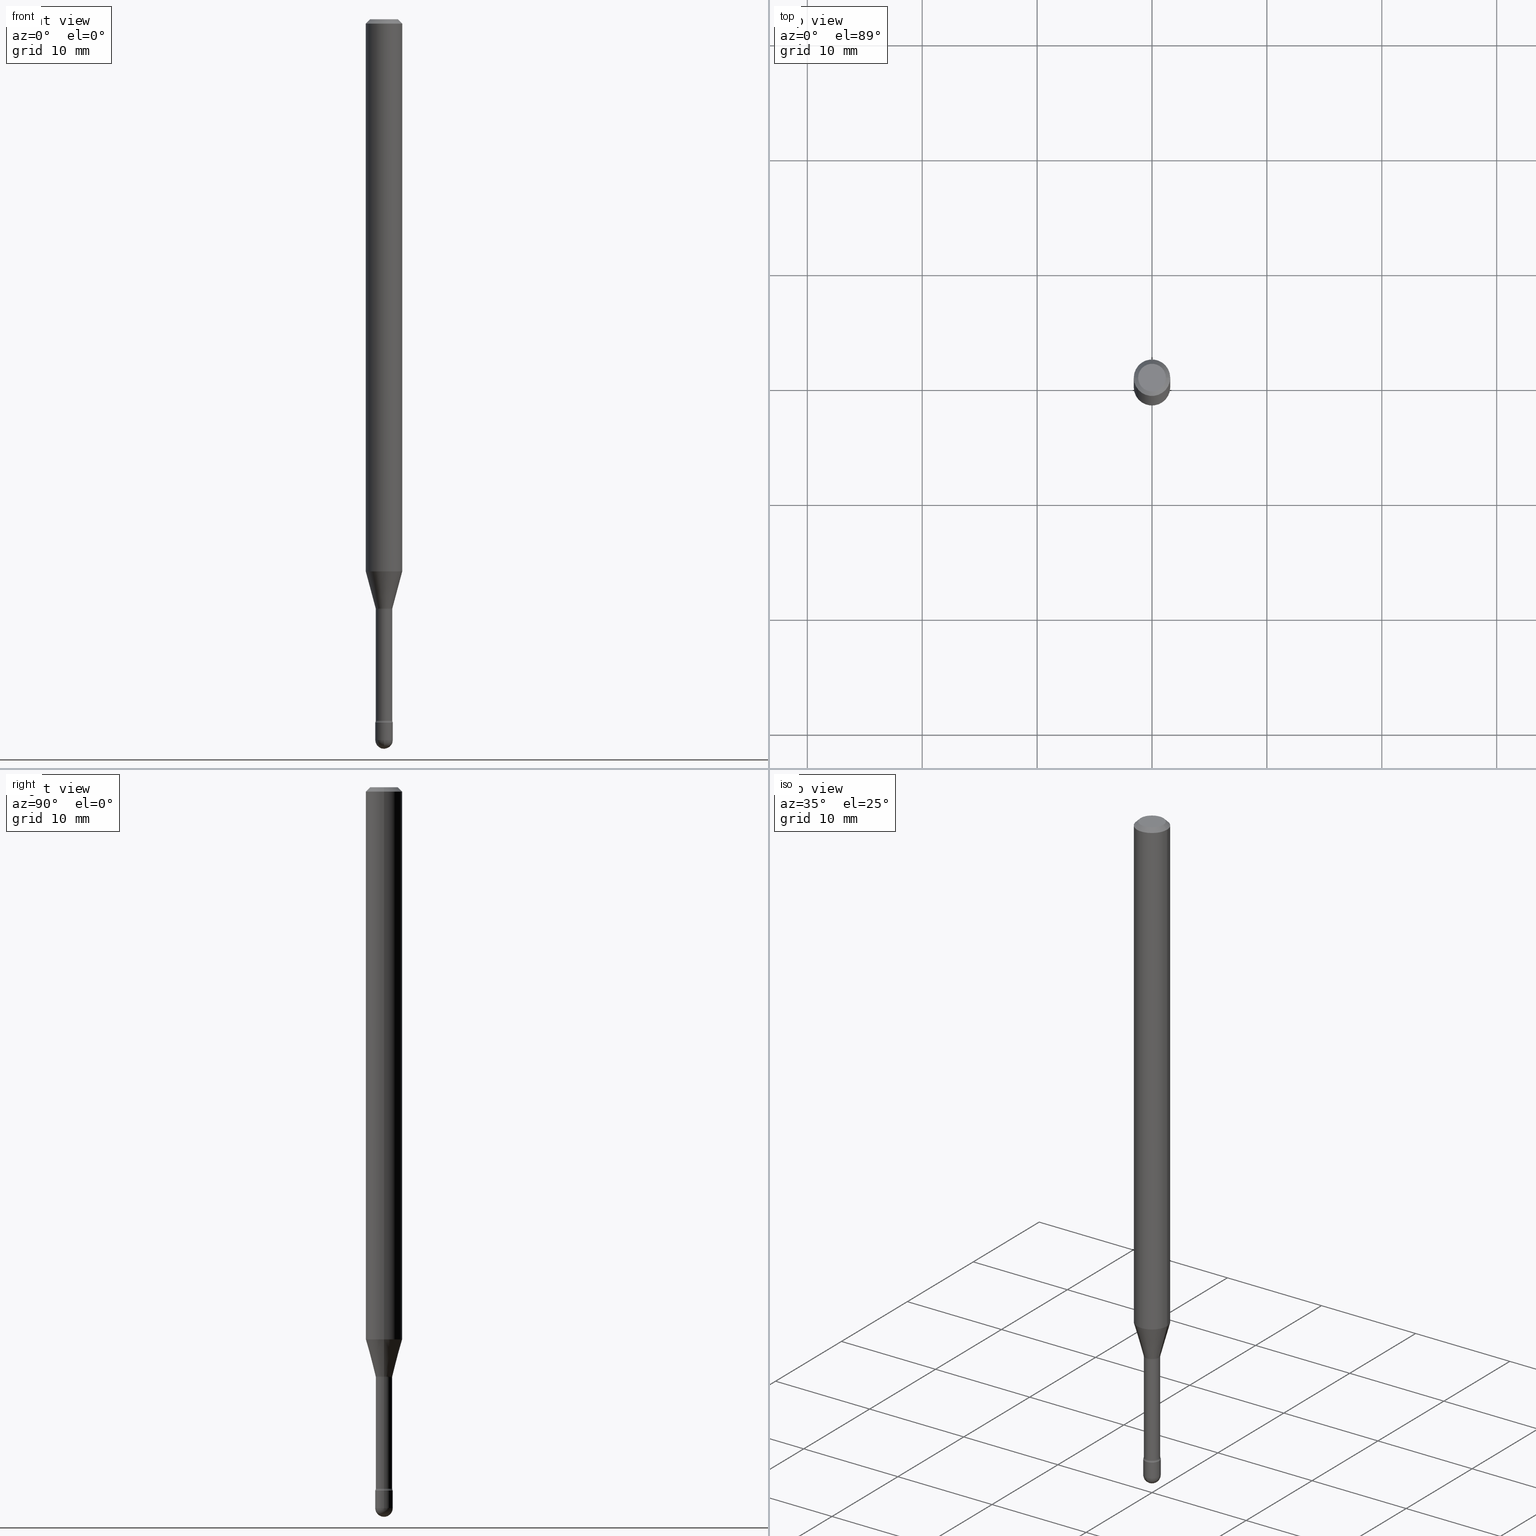
[diagram: canonical four-view strip — front | top / right | iso, engineering-drawing reading convention]
A machine part, canonical four-view strip (front | top / right | iso — engineering-drawing reading convention). The complete STEP part file that produces these views, byte-faithful:
ISO-10303-21;
HEADER;
FILE_DESCRIPTION (( 'STEP AP203' ),
    '1' );
FILE_NAME ('09496.STEP',
    '2024-04-09T23:52:23',
    ( '' ),
    ( '' ),
    'SwSTEP 2.0',
    'SolidWorks 2023',
    '' );
FILE_SCHEMA (( 'CONFIG_CONTROL_DESIGN' ));
ENDSEC;

DATA;
#1 = EDGE_CURVE ( 'NONE', #75, #316, #59, .T. ) ;
#2 = ORIENTED_EDGE ( 'NONE', *, *, #235, .T. ) ;
#3 = DIRECTION ( 'NONE',  ( 1.000000000000000000, -6.982962677686299054E-15, 0.000000000000000000 ) ) ;
#4 = AXIS2_PLACEMENT_3D ( 'NONE', #191, #543, #328 ) ;
#5 = ORIENTED_EDGE ( 'NONE', *, *, #445, .F. ) ;
#6 = EDGE_CURVE ( 'NONE', #163, #319, #530, .T. ) ;
#7 = EDGE_LOOP ( 'NONE', ( #206, #2, #524, #218 ) ) ;
#8 = EDGE_CURVE ( 'NONE', #316, #75, #335, .T. ) ;
#9 = CIRCLE ( 'NONE', #23, 0.03000000000000000583 ) ;
#10 = ORIENTED_EDGE ( 'NONE', *, *, #262, .T. ) ;
#11 = ORIENTED_EDGE ( 'NONE', *, *, #514, .F. ) ;
#12 = CARTESIAN_POINT ( 'NONE',  ( 2.094888803306469144E-16, 0.02999999999999158548, -2.410000000000000142 ) ) ;
#13 = CARTESIAN_POINT ( 'NONE',  ( -0.03000000000000000583, -8.306051646049246381E-15, -2.470000000000000195 ) ) ;
#14 = VERTEX_POINT ( 'NONE', #558 ) ;
#15 = ADVANCED_FACE ( 'NONE', ( #72 ), #248, .T. ) ;
#16 = LINE ( 'NONE', #495, #480 ) ;
#17 = DIRECTION ( 'NONE',  ( -1.000000000000000000, 7.105427357601001070E-15, -4.926315508542082329E-29 ) ) ;
#18 = ORIENTED_EDGE ( 'NONE', *, *, #228, .F. ) ;
#19 = LOCAL_TIME ( 19, 52, 23.00000000000000000, #566 ) ;
#20 = DIRECTION ( 'NONE',  ( -2.445468806185136597E-29, 3.491481338843145583E-15, 1.000000000000000000 ) ) ;
#21 = AXIS2_PLACEMENT_3D ( 'NONE', #84, #546, #298 ) ;
#22 = CONICAL_SURFACE ( 'NONE', #451, 0.02871111260566397427, 0.2617993877991500740 ) ;
#23 = AXIS2_PLACEMENT_3D ( 'NONE', #565, #249, #118 ) ;
#24 = ORIENTED_EDGE ( 'NONE', *, *, #310, .F. ) ;
#25 = ORIENTED_EDGE ( 'NONE', *, *, #364, .F. ) ;
#26 = PLANE ( 'NONE',  #420 ) ;
#27 = ORIENTED_EDGE ( 'NONE', *, *, #414, .T. ) ;
#28 = PERSON_AND_ORGANIZATION ( #207, #528 ) ;
#29 = ORIENTED_EDGE ( 'NONE', *, *, #332, .T. ) ;
#30 = DIRECTION ( 'NONE',  ( 1.000000000000000000, -6.982962677686262766E-15, 0.000000000000000000 ) ) ;
#31 = CIRCLE ( 'NONE', #353, 0.06250000000000000000 ) ;
#32 = ADVANCED_FACE ( 'NONE', ( #108 ), #302, .T. ) ;
#33 = ORIENTED_EDGE ( 'NONE', *, *, #406, .T. ) ;
#34 = EDGE_CURVE ( 'NONE', #323, #194, #347, .T. ) ;
#35 = CARTESIAN_POINT ( 'NONE',  ( 0.02819999999999999590, -1.969195475107510260E-16, 4.780733988912474930E-16 ) ) ;
#36 = PERSON_AND_ORGANIZATION ( #207, #528 ) ;
#37 = DIRECTION ( 'NONE',  ( 1.000000000000000000, -6.982962677686265922E-15, 4.883557194083112340E-29 ) ) ;
#38 = CARTESIAN_POINT ( 'NONE',  ( 5.893579822906179826E-29, -8.414470026611981678E-15, -2.410000000000000142 ) ) ;
#39 = APPROVAL_ROLE ( '' ) ;
#40 = FACE_OUTER_BOUND ( 'NONE', #523, .T. ) ;
#41 = CC_DESIGN_SECURITY_CLASSIFICATION ( #434, ( #483 ) ) ;
#42 = CONICAL_SURFACE ( 'NONE', #408, 0.02871111260566397427, 0.2617993877991500740 ) ;
#43 = ADVANCED_FACE ( 'NONE', ( #544 ), #419, .F. ) ;
#44 = CARTESIAN_POINT ( 'NONE',  ( 0.03000000000000000583, -2.094888803305880457E-16, 1.462853032738781053E-30 ) ) ;
#45 = SHAPE_DEFINITION_REPRESENTATION ( #201, #435 ) ;
#46 = CARTESIAN_POINT ( 'NONE',  ( 6.040307951277287977E-29, -8.623958906942569995E-15, -2.470000000000000195 ) ) ;
#47 = CARTESIAN_POINT ( 'NONE',  ( 0.03000000000000000583, -8.623958906942569995E-15, -2.410000000000000142 ) ) ;
#48 = ORIENTED_EDGE ( 'NONE', *, *, #468, .T. ) ;
#49 = CC_DESIGN_PERSON_AND_ORGANIZATION_ASSIGNMENT ( #36, #205, ( #483 ) ) ;
#50 = CARTESIAN_POINT ( 'NONE',  ( 4.935182261116898354E-29, -7.046132310049541601E-15, -2.018092501787273285 ) ) ;
#51 = AXIS2_PLACEMENT_3D ( 'NONE', #271, #446, #233 ) ;
#52 = CARTESIAN_POINT ( 'NONE',  ( 0.000000000000000000, 0.000000000000000000, 0.000000000000000000 ) ) ;
#53 = EDGE_LOOP ( 'NONE', ( #441, #554, #535, #485 ) ) ;
#54 = DIRECTION ( 'NONE',  ( -2.445468806185136597E-29, 3.491481338843145583E-15, 1.000000000000000000 ) ) ;
#55 = VERTEX_POINT ( 'NONE', #104 ) ;
#56 = DIRECTION ( 'NONE',  ( -2.445468806185136597E-29, 3.491481338843145583E-15, 1.000000000000000000 ) ) ;
#57 = ORIENTED_EDGE ( 'NONE', *, *, #287, .F. ) ;
#58 = APPROVAL_PERSON_ORGANIZATION ( #116, #488, #562 ) ;
#59 = CIRCLE ( 'NONE', #378, 0.02999999999999999889 ) ;
#60 = CC_DESIGN_DATE_AND_TIME_ASSIGNMENT ( #132, #256, ( #434 ) ) ;
#61 = CARTESIAN_POINT ( 'NONE',  ( 6.040307951277287977E-29, -8.623958906942569995E-15, -2.470000000000000195 ) ) ;
#62 = EDGE_CURVE ( 'NONE', #187, #319, #265, .T. ) ;
#63 = DIRECTION ( 'NONE',  ( -2.445468806185136597E-29, 3.491481338843145583E-15, 1.000000000000000000 ) ) ;
#64 = CARTESIAN_POINT ( 'NONE',  ( 0.000000000000000000, 0.000000000000000000, 0.000000000000000000 ) ) ;
#65 = CLOSED_SHELL ( 'NONE', ( #154, #85, #125, #226, #105, #278, #527, #209, #283, #399, #179, #43, #175, #458 ) ) ;
#66 = DIRECTION ( 'NONE',  ( -2.438088387897960049E-29, 3.491481338843145188E-15, 1.000000000000000000 ) ) ;
#67 = AXIS2_PLACEMENT_3D ( 'NONE', #456, #69, #555 ) ;
#68 = EDGE_LOOP ( 'NONE', ( #48, #234, #25, #198, #87 ) ) ;
#69 = DIRECTION ( 'NONE',  ( 2.438088387897960049E-29, -3.491481338843145188E-15, -1.000000000000000000 ) ) ;
#70 = CARTESIAN_POINT ( 'NONE',  ( -0.02999999999999999889, -8.306051646049246381E-15, -2.410000000000000142 ) ) ;
#71 = APPROVAL_DATE_TIME ( #301, #439 ) ;
#72 = FACE_OUTER_BOUND ( 'NONE', #312, .T. ) ;
#73 = DIRECTION ( 'NONE',  ( 1.000000000000000000, -6.982962677686262766E-15, 0.000000000000000000 ) ) ;
#74 = DIRECTION ( 'NONE',  ( -0.2588190451025213501, 5.211531920934551042E-15, 0.9659258262890682012 ) ) ;
#75 = VERTEX_POINT ( 'NONE', #47 ) ;
#76 = CARTESIAN_POINT ( 'NONE',  ( 6.040307951277287977E-29, -8.623958906942569995E-15, -2.470000000000000195 ) ) ;
#77 = ORIENTED_EDGE ( 'NONE', *, *, #217, .T. ) ;
#78 = MANIFOLD_SOLID_BREP ( 'Body-Move/Copy2[1]', #81 ) ;
#79 = DIRECTION ( 'NONE',  ( 1.000000000000000000, -6.982962677686268288E-15, 0.000000000000000000 ) ) ;
#80 = FACE_OUTER_BOUND ( 'NONE', #487, .T. ) ;
#81 = CLOSED_SHELL ( 'NONE', ( #32, #15, #244, #492, #463 ) ) ;
#82 = AXIS2_PLACEMENT_3D ( 'NONE', #349, #501, #30 ) ;
#83 = COORDINATED_UNIVERSAL_TIME_OFFSET ( 5, 0, .BEHIND. ) ;
#84 = CARTESIAN_POINT ( 'NONE',  ( 5.893579822906179826E-29, -8.414470026611981678E-15, -2.410000000000000142 ) ) ;
#85 = ADVANCED_FACE ( 'NONE', ( #313 ), #170, .T. ) ;
#86 = CARTESIAN_POINT ( 'NONE',  ( -0.02871111260566397427, -6.842127585074094010E-15, -2.018092501787273285 ) ) ;
#87 = ORIENTED_EDGE ( 'NONE', *, *, #384, .T. ) ;
#88 = APPROVAL_ROLE ( '' ) ;
#89 = EDGE_CURVE ( 'NONE', #137, #359, #219, .T. ) ;
#90 = CIRCLE ( 'NONE', #111, 0.03000000000000000583 ) ;
#91 = DIRECTION ( 'NONE',  ( 1.000000000000000000, -6.982962677686278543E-15, 0.000000000000000000 ) ) ;
#92 = DIRECTION ( 'NONE',  ( 1.000000000000000000, -6.982962677686270655E-15, 4.883557194083114583E-29 ) ) ;
#93 = ORIENTED_EDGE ( 'NONE', *, *, #235, .F. ) ;
#94 = CARTESIAN_POINT ( 'NONE',  ( -1.169113584055446105E-44, 1.669184350826100908E-30, 4.780733988912460139E-16 ) ) ;
#95 = CARTESIAN_POINT ( 'NONE',  ( 4.935182261116898354E-29, -7.046132310049541601E-15, -2.018092501787273285 ) ) ;
#96 = CIRCLE ( 'NONE', #167, 0.06250000000000000000 ) ;
#97 = VERTEX_POINT ( 'NONE', #520 ) ;
#98 = PLANE ( 'NONE',  #502 ) ;
#99 = ORIENTED_EDGE ( 'NONE', *, *, #342, .T. ) ;
#100 = CARTESIAN_POINT ( 'NONE',  ( -0.06250000000000000000, -6.161760863379818545E-15, -1.891990657300387735 ) ) ;
#101 = EDGE_LOOP ( 'NONE', ( #409, #192, #375, #140 ) ) ;
#102 = CARTESIAN_POINT ( 'NONE',  ( -0.06250000000000000000, 3.840629472727441958E-16, -0.01500000000000008271 ) ) ;
#103 = LINE ( 'NONE', #447, #472 ) ;
#104 = CARTESIAN_POINT ( 'NONE',  ( 0.02819999999999999590, -8.586514147837976028E-15, -2.402875394747777893 ) ) ;
#105 = ADVANCED_FACE ( 'NONE', ( #131 ), #188, .T. ) ;
#106 = DIRECTION ( 'NONE',  ( 1.000000000000000000, -6.982962677686266711E-15, 4.947382444955205209E-29 ) ) ;
#107 = ORIENTED_EDGE ( 'NONE', *, *, #62, .T. ) ;
#108 = FACE_OUTER_BOUND ( 'NONE', #68, .T. ) ;
#109 = AXIS2_PLACEMENT_3D ( 'NONE', #325, #448, #106 ) ;
#110 = DIRECTION ( 'NONE',  ( 7.105427357601001859E-15, 1.000000000000000000, -3.491481338843145583E-15 ) ) ;
#111 = AXIS2_PLACEMENT_3D ( 'NONE', #76, #476, #380 ) ;
#112 = ORIENTED_EDGE ( 'NONE', *, *, #384, .F. ) ;
#113 = CARTESIAN_POINT ( 'NONE',  ( 4.944676269635571097E-29, -7.059687238041231398E-15, -2.021974787463811207 ) ) ;
#114 = CARTESIAN_POINT ( 'NONE',  ( 3.668203209277725232E-31, -5.237222008264747365E-17, -0.01500000000000008271 ) ) ;
#115 = ORIENTED_EDGE ( 'NONE', *, *, #89, .T. ) ;
#116 = PERSON_AND_ORGANIZATION ( #207, #528 ) ;
#117 = VERTEX_POINT ( 'NONE', #13 ) ;
#118 = DIRECTION ( 'NONE',  ( 1.000000000000000000, -6.982962677686299054E-15, 0.000000000000000000 ) ) ;
#119 = EDGE_CURVE ( 'NONE', #187, #285, #96, .T. ) ;
#120 = DIRECTION ( 'NONE',  ( 6.982962677686265922E-15, 1.000000000000000000, 0.000000000000000000 ) ) ;
#121 = CARTESIAN_POINT ( 'NONE',  ( -1.169113584055446105E-44, 1.669184350826100908E-30, 4.780733988912460139E-16 ) ) ;
#122 = CIRCLE ( 'NONE', #348, 0.02819999999999999590 ) ;
#123 = DIRECTION ( 'NONE',  ( 1.000000000000000000, -6.982962677686280121E-15, 0.000000000000000000 ) ) ;
#124 = CARTESIAN_POINT ( 'NONE',  ( -0.06250000000000000000, -2.885021936806201701E-15, -0.01500000000000008271 ) ) ;
#125 = ADVANCED_FACE ( 'NONE', ( #80 ), #133, .F. ) ;
#126 = PERSON_AND_ORGANIZATION_ROLE ( 'creator' ) ;
#127 = DIRECTION ( 'NONE',  ( -2.445468806185136597E-29, 3.491481338843145583E-15, 1.000000000000000000 ) ) ;
#128 = EDGE_CURVE ( 'NONE', #285, #163, #16, .T. ) ;
#129 = CALENDAR_DATE ( 2024, 9, 4 ) ;
#130 = SPHERICAL_SURFACE ( 'NONE', #306, 0.02999999999999997807 ) ;
#131 = FACE_OUTER_BOUND ( 'NONE', #550, .T. ) ;
#132 = DATE_AND_TIME ( #129, #19 ) ;
#133 = TOROIDAL_SURFACE ( 'NONE', #304, 0.04320000000000000923, 0.01500000000000001159 ) ;
#134 = DIRECTION ( 'NONE',  ( -1.000000000000000000, 6.982962677686265922E-15, -4.883557194083112340E-29 ) ) ;
#135 =( GEOMETRIC_REPRESENTATION_CONTEXT ( 3 ) GLOBAL_UNCERTAINTY_ASSIGNED_CONTEXT ( ( #473 ) ) GLOBAL_UNIT_ASSIGNED_CONTEXT ( ( #138, #526, #484 ) ) REPRESENTATION_CONTEXT ( 'NONE', 'WORKASPACE' ) );
#136 = CC_DESIGN_DATE_AND_TIME_ASSIGNMENT ( #549, #343, ( #251 ) ) ;
#137 = VERTEX_POINT ( 'NONE', #280 ) ;
#138 =( CONVERSION_BASED_UNIT ( 'INCH', #224 ) LENGTH_UNIT ( ) NAMED_UNIT ( #291 ) );
#139 = EDGE_LOOP ( 'NONE', ( #538, #152, #29, #57 ) ) ;
#140 = ORIENTED_EDGE ( 'NONE', *, *, #507, .F. ) ;
#141 = ORIENTED_EDGE ( 'NONE', *, *, #322, .F. ) ;
#142 = DIRECTION ( 'NONE',  ( 1.000000000000000000, -6.982962677686267499E-15, 4.884662768193073002E-29 ) ) ;
#143 = ORIENTED_EDGE ( 'NONE', *, *, #119, .F. ) ;
#144 = AXIS2_PLACEMENT_3D ( 'NONE', #50, #385, #123 ) ;
#145 = CIRCLE ( 'NONE', #4, 0.02999999999999999889 ) ;
#146 = DIRECTION ( 'NONE',  ( -2.445468806185136597E-29, 3.491481338843145583E-15, 1.000000000000000000 ) ) ;
#147 = DIRECTION ( 'NONE',  ( -2.445468806185136877E-29, 3.491481338843145188E-15, 1.000000000000000000 ) ) ;
#148 = ORIENTED_EDGE ( 'NONE', *, *, #183, .F. ) ;
#149 = CARTESIAN_POINT ( 'NONE',  ( 4.944676269635571097E-29, -7.059687238041231398E-15, -2.021974787463811207 ) ) ;
#150 = DIRECTION ( 'NONE',  ( 1.000000000000000000, -6.982962677686270655E-15, 4.883557194083114583E-29 ) ) ;
#151 = APPROVAL_DATE_TIME ( #518, #488 ) ;
#152 = ORIENTED_EDGE ( 'NONE', *, *, #541, .T. ) ;
#153 = CARTESIAN_POINT ( 'NONE',  ( 0.02819999999999999243, -7.256606785551984890E-15, -2.021974787463811207 ) ) ;
#154 = ADVANCED_FACE ( 'NONE', ( #330 ), #317, .F. ) ;
#155 = CIRCLE ( 'NONE', #259, 0.04749999999999999362 ) ;
#156 = FACE_OUTER_BOUND ( 'NONE', #288, .T. ) ;
#157 = CIRCLE ( 'NONE', #436, 0.02819999999999999590 ) ;
#158 = DIRECTION ( 'NONE',  ( 0.000000000000000000, 0.000000000000000000, 1.000000000000000000 ) ) ;
#159 = ORIENTED_EDGE ( 'NONE', *, *, #507, .T. ) ;
#160 = CC_DESIGN_PERSON_AND_ORGANIZATION_ASSIGNMENT ( #172, #351, ( #434 ) ) ;
#161 = CARTESIAN_POINT ( 'NONE',  ( 4.944676269635571097E-29, -7.059687238041231398E-15, -2.021974787463811207 ) ) ;
#162 = PERSON_AND_ORGANIZATION_ROLE ( 'creator' ) ;
#163 = VERTEX_POINT ( 'NONE', #189 ) ;
#164 = DIRECTION ( 'NONE',  ( -2.445468806185136597E-29, 3.491481338843145583E-15, 1.000000000000000000 ) ) ;
#165 = DIRECTION ( 'NONE',  ( -2.445468806185136877E-29, 3.491481338843145188E-15, 1.000000000000000000 ) ) ;
#166 = EDGE_CURVE ( 'NONE', #359, #455, #397, .T. ) ;
#167 = AXIS2_PLACEMENT_3D ( 'NONE', #277, #444, #510 ) ;
#168 = CONICAL_SURFACE ( 'NONE', #178, 0.06250000000000000000, 0.7853981633974483900 ) ;
#169 = LOCAL_TIME ( 19, 52, 23.00000000000000000, #214 ) ;
#170 = CYLINDRICAL_SURFACE ( 'NONE', #407, 0.02819999999999999590 ) ;
#171 = DIRECTION ( 'NONE',  ( -2.445468806185136597E-29, 3.491481338843145583E-15, 1.000000000000000000 ) ) ;
#172 = PERSON_AND_ORGANIZATION ( #207, #528 ) ;
#173 =( LENGTH_UNIT ( ) NAMED_UNIT ( * ) SI_UNIT ( $, .METRE. ) );
#174 = LINE ( 'NONE', #432, #327 ) ;
#175 = ADVANCED_FACE ( 'NONE', ( #498 ), #400, .T. ) ;
#176 = ORIENTED_EDGE ( 'NONE', *, *, #445, .T. ) ;
#177 = DIRECTION ( 'NONE',  ( 0.2588190451025213501, 1.565188264969621968E-15, 0.9659258262890682012 ) ) ;
#178 = AXIS2_PLACEMENT_3D ( 'NONE', #421, #246, #560 ) ;
#179 = ADVANCED_FACE ( 'NONE', ( #284 ), #98, .F. ) ;
#180 = ORIENTED_EDGE ( 'NONE', *, *, #8, .T. ) ;
#181 = CARTESIAN_POINT ( 'NONE',  ( 6.040307951277287977E-29, -8.623958906942569995E-15, -2.470000000000000195 ) ) ;
#182 = VERTEX_POINT ( 'NONE', #365 ) ;
#183 = EDGE_CURVE ( 'NONE', #401, #184, #155, .T. ) ;
#184 = VERTEX_POINT ( 'NONE', #489 ) ;
#185 = AXIS2_PLACEMENT_3D ( 'NONE', #253, #37, #241 ) ;
#186 = AXIS2_PLACEMENT_3D ( 'NONE', #52, #537, #392 ) ;
#187 = VERTEX_POINT ( 'NONE', #100 ) ;
#188 = CYLINDRICAL_SURFACE ( 'NONE', #540, 0.06250000000000000000 ) ;
#189 = CARTESIAN_POINT ( 'NONE',  ( 0.06250000000000000000, -4.888073874380391431E-16, -0.01500000000000008271 ) ) ;
#190 = CARTESIAN_POINT ( 'NONE',  ( 5.876156823005485882E-29, -8.389594600327222537E-15, -2.402875394747777449 ) ) ;
#191 = CARTESIAN_POINT ( 'NONE',  ( 5.893579822906179826E-29, -8.414470026611981678E-15, -2.410000000000000142 ) ) ;
#192 = ORIENTED_EDGE ( 'NONE', *, *, #228, .T. ) ;
#193 = AXIS2_PLACEMENT_3D ( 'NONE', #337, #20, #73 ) ;
#194 = VERTEX_POINT ( 'NONE', #275 ) ;
#195 = VERTEX_POINT ( 'NONE', #443 ) ;
#196 = ORIENTED_EDGE ( 'NONE', *, *, #357, .T. ) ;
#197 = DIRECTION ( 'NONE',  ( -2.438088387897960049E-29, 3.491481338843145188E-15, 1.000000000000000000 ) ) ;
#198 = ORIENTED_EDGE ( 'NONE', *, *, #477, .F. ) ;
#199 = VECTOR ( 'NONE', #457, 39.37007874015748143 ) ;
#200 = CARTESIAN_POINT ( 'NONE',  ( -0.04320000000000000923, -8.082640138478858353E-15, -2.402875394747777449 ) ) ;
#201 = PRODUCT_DEFINITION_SHAPE ( 'NONE', 'NONE',  #251 ) ;
#202 = CIRCLE ( 'NONE', #362, 0.02819999999999999243 ) ;
#203 = ORIENTED_EDGE ( 'NONE', *, *, #8, .F. ) ;
#204 = DIRECTION ( 'NONE',  ( 1.000000000000000000, -6.982962677686266711E-15, 4.852736867747366207E-29 ) ) ;
#205 = PERSON_AND_ORGANIZATION_ROLE ( 'design_supplier' ) ;
#206 = ORIENTED_EDGE ( 'NONE', *, *, #89, .F. ) ;
#207 = PERSON ( 'UNSPECIFIED', 'UNSPECIFIED', 'UNSPECIFIED', ('UNSPECIFIED'), ('UNSPECIFIED'), ('UNSPECIFIED') ) ;
#208 = DIRECTION ( 'NONE',  ( 1.000000000000000000, -6.982962677686265922E-15, 4.876176775795935793E-29 ) ) ;
#209 = ADVANCED_FACE ( 'NONE', ( #307 ), #345, .T. ) ;
#210 = CALENDAR_DATE ( 2024, 9, 4 ) ;
#211 = CARTESIAN_POINT ( 'NONE',  ( -0.03000000000000000583, 2.131628207280300972E-16, -1.475680527076471882E-30 ) ) ;
#212 = LOCAL_TIME ( 19, 52, 23.00000000000000000, #471 ) ;
#213 = CIRCLE ( 'NONE', #389, 0.03000000000000000583 ) ;
#214 = COORDINATED_UNIVERSAL_TIME_OFFSET ( 5, 0, .BEHIND. ) ;
#215 = EDGE_CURVE ( 'NONE', #117, #326, #559, .T. ) ;
#216 = LINE ( 'NONE', #44, #231 ) ;
#217 = EDGE_CURVE ( 'NONE', #319, #163, #31, .T. ) ;
#218 = ORIENTED_EDGE ( 'NONE', *, *, #166, .F. ) ;
#219 = CIRCLE ( 'NONE', #144, 0.02871111260566397427 ) ;
#220 = DIRECTION ( 'NONE',  ( 6.982962677686265922E-15, 1.000000000000000000, 0.000000000000000000 ) ) ;
#221 = CIRCLE ( 'NONE', #464, 0.03000000000000000583 ) ;
#222 = EDGE_CURVE ( 'NONE', #326, #508, #490, .T. ) ;
#223 = ORIENTED_EDGE ( 'NONE', *, *, #545, .T. ) ;
#224 = LENGTH_MEASURE_WITH_UNIT ( LENGTH_MEASURE( 0.02539999999999999897 ), #173 );
#225 = ORIENTED_EDGE ( 'NONE', *, *, #34, .F. ) ;
#226 = ADVANCED_FACE ( 'NONE', ( #466 ), #491, .T. ) ;
#227 = ORIENTED_EDGE ( 'NONE', *, *, #310, .T. ) ;
#228 = EDGE_CURVE ( 'NONE', #137, #187, #305, .T. ) ;
#229 = ORIENTED_EDGE ( 'NONE', *, *, #215, .F. ) ;
#230 = ORIENTED_EDGE ( 'NONE', *, *, #391, .T. ) ;
#231 = VECTOR ( 'NONE', #431, 39.37007874015748143 ) ;
#232 = ORIENTED_EDGE ( 'NONE', *, *, #34, .T. ) ;
#233 = DIRECTION ( 'NONE',  ( 1.000000000000000000, -6.982962677686255667E-15, 0.000000000000000000 ) ) ;
#234 = ORIENTED_EDGE ( 'NONE', *, *, #215, .T. ) ;
#235 = EDGE_CURVE ( 'NONE', #137, #195, #355, .T. ) ;
#236 = DIRECTION ( 'NONE',  ( 1.000000000000000000, -6.982962677686266711E-15, 4.876176775795935793E-29 ) ) ;
#237 = AXIS2_PLACEMENT_3D ( 'NONE', #382, #372, #462 ) ;
#238 = VECTOR ( 'NONE', #534, 39.37007874015748143 ) ;
#239 = DIRECTION ( 'NONE',  ( -2.445468806185136597E-29, 3.491481338843145583E-15, 1.000000000000000000 ) ) ;
#240 = DIRECTION ( 'NONE',  ( 1.000000000000000000, -6.982962677686265922E-15, 4.876176775795935793E-29 ) ) ;
#241 = DIRECTION ( 'NONE',  ( 6.982962677686265922E-15, 1.000000000000000000, 0.000000000000000000 ) ) ;
#242 = LINE ( 'NONE', #35, #515 ) ;
#243 = APPROVAL ( #465, 'UNSPECIFIED' ) ;
#244 = ADVANCED_FACE ( 'NONE', ( #40 ), #26, .T. ) ;
#245 = DIRECTION ( 'NONE',  ( 1.000000000000000000, -6.982962677686269866E-15, 4.883557194083114583E-29 ) ) ;
#246 = DIRECTION ( 'NONE',  ( 2.445468806185136597E-29, -3.491481338843145583E-15, -1.000000000000000000 ) ) ;
#247 = CALENDAR_DATE ( 2024, 9, 4 ) ;
#248 = SPHERICAL_SURFACE ( 'NONE', #426, 0.02999999999999997807 ) ;
#249 = DIRECTION ( 'NONE',  ( -2.445468806185136597E-29, 3.491481338843145583E-15, 1.000000000000000000 ) ) ;
#250 = AXIS2_PLACEMENT_3D ( 'NONE', #453, #556, #299 ) ;
#251 = PRODUCT_DEFINITION ( 'UNKNOWN', '', #483, #438 ) ;
#252 = CALENDAR_DATE ( 2024, 9, 4 ) ;
#253 = CARTESIAN_POINT ( 'NONE',  ( 6.040307951277287977E-29, -8.623958906942569995E-15, -2.470000000000000195 ) ) ;
#254 = CALENDAR_DATE ( 2024, 9, 4 ) ;
#255 = CARTESIAN_POINT ( 'NONE',  ( -0.04320000000000000229, -6.752732776192868792E-15, -2.021974787463811207 ) ) ;
#256 = DATE_TIME_ROLE ( 'classification_date' ) ;
#257 = DIRECTION ( 'NONE',  ( -2.445468806185136597E-29, 3.491481338843145583E-15, 1.000000000000000000 ) ) ;
#258 = CYLINDRICAL_SURFACE ( 'NONE', #186, 0.03000000000000000583 ) ;
#259 = AXIS2_PLACEMENT_3D ( 'NONE', #539, #411, #142 ) ;
#260 = CIRCLE ( 'NONE', #82, 0.01500000000000001159 ) ;
#261 = MANIFOLD_SOLID_BREP ( 'Body-Move/Copy2[2]', #65 ) ;
#262 = EDGE_CURVE ( 'NONE', #14, #182, #9, .T. ) ;
#263 = EDGE_LOOP ( 'NONE', ( #24, #339, #415, #377 ) ) ;
#264 = DIRECTION ( 'NONE',  ( 1.000000000000000000, -6.982962677686280121E-15, 0.000000000000000000 ) ) ;
#265 = LINE ( 'NONE', #433, #553 ) ;
#266 = APPROVAL_PERSON_ORGANIZATION ( #424, #439, #88 ) ;
#267 = ORIENTED_EDGE ( 'NONE', *, *, #222, .T. ) ;
#268 = CARTESIAN_POINT ( 'NONE',  ( 2.023552857353652888E-45, -2.889097183224559242E-31, -8.274703207154537794E-17 ) ) ;
#269 = AXIS2_PLACEMENT_3D ( 'NONE', #292, #164, #79 ) ;
#270 = EDGE_LOOP ( 'NONE', ( #18, #115, #159, #143 ) ) ;
#271 = CARTESIAN_POINT ( 'NONE',  ( 0.04320000000000000229, -7.361351225717278259E-15, -2.021974787463811207 ) ) ;
#272 = EDGE_LOOP ( 'NONE', ( #93, #141, #418, #176 ) ) ;
#273 = AXIS2_PLACEMENT_3D ( 'NONE', #121, #257, #204 ) ;
#274 = AXIS2_PLACEMENT_3D ( 'NONE', #255, #509, #390 ) ;
#275 = CARTESIAN_POINT ( 'NONE',  ( 2.094888803306483442E-16, 0.02999999999999137038, -2.470000000000000195 ) ) ;
#276 = CARTESIAN_POINT ( 'NONE',  ( 0.06250000000000000000, -4.811533449433681963E-16, -0.01500000000000008271 ) ) ;
#277 = CARTESIAN_POINT ( 'NONE',  ( 4.626804134021810913E-29, -6.605850073229881161E-15, -1.891990657300387735 ) ) ;
#278 = ADVANCED_FACE ( 'NONE', ( #416 ), #42, .T. ) ;
#279 = CARTESIAN_POINT ( 'NONE',  ( 5.876156823005487003E-29, -8.389594600327222537E-15, -2.402875394747777893 ) ) ;
#280 = CARTESIAN_POINT ( 'NONE',  ( -0.02871111260566397427, -6.501944224226956672E-15, -2.018092501787273285 ) ) ;
#281 = DIRECTION ( 'NONE',  ( -2.445468806185136597E-29, 3.491481338843145583E-15, 1.000000000000000000 ) ) ;
#282 = DIRECTION ( 'NONE',  ( -0.7071067811865475727, 2.468850131082257455E-15, -0.7071067811865474617 ) ) ;
#283 = ADVANCED_FACE ( 'NONE', ( #156 ), #168, .T. ) ;
#284 = FACE_OUTER_BOUND ( 'NONE', #403, .T. ) ;
#285 = VERTEX_POINT ( 'NONE', #469 ) ;
#286 = LINE ( 'NONE', #276, #238 ) ;
#287 = EDGE_CURVE ( 'NONE', #195, #455, #202, .T. ) ;
#288 = EDGE_LOOP ( 'NONE', ( #324, #329, #230, #77 ) ) ;
#289 = VECTOR ( 'NONE', #74, 39.37007874015747433 ) ;
#290 = FACE_OUTER_BOUND ( 'NONE', #272, .T. ) ;
#291 = DIMENSIONAL_EXPONENTS ( 1.000000000000000000, 0.000000000000000000, 0.000000000000000000, 0.000000000000000000, 0.000000000000000000, 0.000000000000000000, 0.000000000000000000 ) ;
#292 = CARTESIAN_POINT ( 'NONE',  ( 5.893579822906179826E-29, -8.414470026611981678E-15, -2.410000000000000142 ) ) ;
#293 = CARTESIAN_POINT ( 'NONE',  ( 0.000000000000000000, 0.000000000000000000, 0.000000000000000000 ) ) ;
#294 = ORIENTED_EDGE ( 'NONE', *, *, #308, .F. ) ;
#295 = DIRECTION ( 'NONE',  ( -2.445468806185136597E-29, 3.491481338843145583E-15, 1.000000000000000000 ) ) ;
#296 = CARTESIAN_POINT ( 'NONE',  ( 3.668203209277725232E-31, -5.237222008264747365E-17, -0.01500000000000008271 ) ) ;
#297 = PRODUCT ( '09496', '09496', '', ( #557 ) ) ;
#298 = DIRECTION ( 'NONE',  ( 1.000000000000000000, -6.982962677686268288E-15, 0.000000000000000000 ) ) ;
#299 = DIRECTION ( 'NONE',  ( 1.000000000000000000, -6.982962677686280121E-15, 0.000000000000000000 ) ) ;
#300 = CC_DESIGN_PERSON_AND_ORGANIZATION_ASSIGNMENT ( #333, #126, ( #483 ) ) ;
#301 = DATE_AND_TIME ( #210, #169 ) ;
#302 = CYLINDRICAL_SURFACE ( 'NONE', #309, 0.03000000000000000583 ) ;
#303 = PERSON_AND_ORGANIZATION ( #207, #528 ) ;
#304 = AXIS2_PLACEMENT_3D ( 'NONE', #190, #63, #150 ) ;
#305 = LINE ( 'NONE', #86, #289 ) ;
#306 = AXIS2_PLACEMENT_3D ( 'NONE', #181, #134, #220 ) ;
#307 = FACE_OUTER_BOUND ( 'NONE', #53, .T. ) ;
#308 = EDGE_CURVE ( 'NONE', #55, #75, #260, .T. ) ;
#309 = AXIS2_PLACEMENT_3D ( 'NONE', #64, #459, #236 ) ;
#310 = EDGE_CURVE ( 'NONE', #97, #316, #350, .T. ) ;
#311 = CARTESIAN_POINT ( 'NONE',  ( 6.040307951277287977E-29, -8.623958906942569995E-15, -2.470000000000000195 ) ) ;
#312 = EDGE_LOOP ( 'NONE', ( #225, #196, #11, #486 ) ) ;
#313 = FACE_OUTER_BOUND ( 'NONE', #482, .T. ) ;
#314 = DIRECTION ( 'NONE',  ( 1.000000000000000000, -6.982962677686299054E-15, 0.000000000000000000 ) ) ;
#315 = APPROVAL_PERSON_ORGANIZATION ( #303, #243, #39 ) ;
#316 = VERTEX_POINT ( 'NONE', #517 ) ;
#317 = TOROIDAL_SURFACE ( 'NONE', #388, 0.04320000000000000229, 0.01500000000000002720 ) ;
#318 = CIRCLE ( 'NONE', #522, 0.02819999999999999243 ) ;
#319 = VERTEX_POINT ( 'NONE', #124 ) ;
#320 = ORIENTED_EDGE ( 'NONE', *, *, #1, .F. ) ;
#321 = DIRECTION ( 'NONE',  ( -7.105427357601001070E-15, -1.000000000000000000, 0.000000000000000000 ) ) ;
#322 = EDGE_CURVE ( 'NONE', #359, #137, #393, .T. ) ;
#323 = VERTEX_POINT ( 'NONE', #460 ) ;
#324 = ORIENTED_EDGE ( 'NONE', *, *, #342, .F. ) ;
#325 = CARTESIAN_POINT ( 'NONE',  ( -1.169113584055446105E-44, 1.669184350826100908E-30, 4.780733988912460139E-16 ) ) ;
#326 = VERTEX_POINT ( 'NONE', #70 ) ;
#327 = VECTOR ( 'NONE', #177, 39.37007874015747433 ) ;
#328 = DIRECTION ( 'NONE',  ( 1.000000000000000000, -6.982962677686268288E-15, 0.000000000000000000 ) ) ;
#329 = ORIENTED_EDGE ( 'NONE', *, *, #545, .F. ) ;
#330 = FACE_OUTER_BOUND ( 'NONE', #7, .T. ) ;
#331 = ORIENTED_EDGE ( 'NONE', *, *, #514, .T. ) ;
#332 = EDGE_CURVE ( 'NONE', #55, #455, #242, .T. ) ;
#333 = PERSON_AND_ORGANIZATION ( #207, #528 ) ;
#334 = EDGE_LOOP ( 'NONE', ( #223, #422 ) ) ;
#335 = CIRCLE ( 'NONE', #21, 0.02999999999999999889 ) ;
#336 = AXIS2_PLACEMENT_3D ( 'NONE', #61, #17, #321 ) ;
#337 = CARTESIAN_POINT ( 'NONE',  ( 4.626804134021810913E-29, -6.605850073229881161E-15, -1.891990657300387735 ) ) ;
#338 = DIRECTION ( 'NONE',  ( 1.000000000000000000, -6.982962677686279332E-15, 0.000000000000000000 ) ) ;
#339 = ORIENTED_EDGE ( 'NONE', *, *, #406, .F. ) ;
#340 = PERSON_AND_ORGANIZATION_ROLE ( 'design_owner' ) ;
#341 = CARTESIAN_POINT ( 'NONE',  ( 5.893579822906179826E-29, -8.414470026611981678E-15, -2.410000000000000142 ) ) ;
#342 = EDGE_CURVE ( 'NONE', #401, #163, #286, .T. ) ;
#343 = DATE_TIME_ROLE ( 'creation_date' ) ;
#344 = CARTESIAN_POINT ( 'NONE',  ( 6.040307951277287977E-29, -8.623958906942569995E-15, -2.470000000000000195 ) ) ;
#345 = CYLINDRICAL_SURFACE ( 'NONE', #273, 0.06250000000000000000 ) ;
#346 = APPLICATION_CONTEXT ( 'configuration controlled 3d designs of mechanical parts and assemblies' ) ;
#347 = CIRCLE ( 'NONE', #185, 0.02999999999999997807 ) ;
#348 = AXIS2_PLACEMENT_3D ( 'NONE', #474, #395, #91 ) ;
#349 = CARTESIAN_POINT ( 'NONE',  ( 0.04320000000000000923, -8.691258588003269398E-15, -2.402875394747777449 ) ) ;
#350 = CIRCLE ( 'NONE', #481, 0.01500000000000001159 ) ;
#351 = PERSON_AND_ORGANIZATION_ROLE ( 'classification_officer' ) ;
#352 = DIRECTION ( 'NONE',  ( 1.000000000000000000, -6.982962677686266711E-15, 4.947382444955205209E-29 ) ) ;
#353 = AXIS2_PLACEMENT_3D ( 'NONE', #114, #383, #513 ) ;
#354 = ORIENTED_EDGE ( 'NONE', *, *, #364, .T. ) ;
#355 = CIRCLE ( 'NONE', #274, 0.01500000000000002720 ) ;
#356 = DIRECTION ( 'NONE',  ( -2.445468806185136597E-29, 3.491481338843145583E-15, 1.000000000000000000 ) ) ;
#357 = EDGE_CURVE ( 'NONE', #323, #14, #370, .T. ) ;
#358 = CARTESIAN_POINT ( 'NONE',  ( 0.02999999999999999889, -8.623958906942569995E-15, -2.410000000000000142 ) ) ;
#359 = VERTEX_POINT ( 'NONE', #536 ) ;
#360 = ORIENTED_EDGE ( 'NONE', *, *, #391, .F. ) ;
#361 = EDGE_LOOP ( 'NONE', ( #229, #331, #10, #452, #467 ) ) ;
#362 = AXIS2_PLACEMENT_3D ( 'NONE', #161, #171, #338 ) ;
#363 = CARTESIAN_POINT ( 'NONE',  ( -1.169113584055446105E-44, 1.669184350826100908E-30, 4.780733988912460139E-16 ) ) ;
#364 = EDGE_CURVE ( 'NONE', #508, #326, #145, .T. ) ;
#365 = CARTESIAN_POINT ( 'NONE',  ( 0.03000000000000000583, -8.728703347107864943E-15, -2.470000000000000195 ) ) ;
#366 = APPLICATION_CONTEXT ( 'configuration controlled 3d designs of mechanical parts and assemblies' ) ;
#367 = PLANE ( 'NONE',  #67 ) ;
#368 = DIRECTION ( 'NONE',  ( 1.000000000000000000, -6.982962677686269866E-15, 4.883557194083114583E-29 ) ) ;
#369 = AXIS2_PLACEMENT_3D ( 'NONE', #293, #158, #417 ) ;
#370 = CIRCLE ( 'NONE', #336, 0.02999999999999997807 ) ;
#371 = EDGE_CURVE ( 'NONE', #97, #195, #103, .T. ) ;
#372 = DIRECTION ( 'NONE',  ( -2.445468806185136597E-29, 3.491481338843145583E-15, 1.000000000000000000 ) ) ;
#373 = CARTESIAN_POINT ( 'NONE',  ( 0.04749999999999999362, -4.035134999187581581E-16, -8.274703207154280181E-17 ) ) ;
#374 = ORIENTED_EDGE ( 'NONE', *, *, #6, .F. ) ;
#375 = ORIENTED_EDGE ( 'NONE', *, *, #414, .F. ) ;
#376 = PERSON_AND_ORGANIZATION ( #207, #528 ) ;
#377 = ORIENTED_EDGE ( 'NONE', *, *, #1, .T. ) ;
#378 = AXIS2_PLACEMENT_3D ( 'NONE', #341, #503, #499 ) ;
#379 = AXIS2_PLACEMENT_3D ( 'NONE', #268, #356, #478 ) ;
#380 = DIRECTION ( 'NONE',  ( 1.000000000000000000, -6.982962677686299054E-15, 0.000000000000000000 ) ) ;
#381 = DIRECTION ( 'NONE',  ( -1.000000000000000000, 7.105427357600985293E-15, 0.000000000000000000 ) ) ;
#382 = CARTESIAN_POINT ( 'NONE',  ( 3.668203209277725232E-31, -5.237222008264747365E-17, -0.01500000000000008271 ) ) ;
#383 = DIRECTION ( 'NONE',  ( -2.445468806185136597E-29, 3.491481338843145583E-15, 1.000000000000000000 ) ) ;
#384 = EDGE_CURVE ( 'NONE', #182, #194, #90, .T. ) ;
#385 = DIRECTION ( 'NONE',  ( -2.445468806185136597E-29, 3.491481338843145583E-15, 1.000000000000000000 ) ) ;
#386 = DIRECTION ( 'NONE',  ( -2.445468806185136597E-29, 3.491481338843145583E-15, 1.000000000000000000 ) ) ;
#387 = COORDINATED_UNIVERSAL_TIME_OFFSET ( 5, 0, .BEHIND. ) ;
#388 = AXIS2_PLACEMENT_3D ( 'NONE', #440, #146, #368 ) ;
#389 = AXIS2_PLACEMENT_3D ( 'NONE', #46, #56, #3 ) ;
#390 = DIRECTION ( 'NONE',  ( -1.000000000000000000, 7.105427357600978193E-15, 0.000000000000000000 ) ) ;
#391 = EDGE_CURVE ( 'NONE', #184, #319, #497, .T. ) ;
#392 = DIRECTION ( 'NONE',  ( 1.000000000000000000, -6.982962677686266711E-15, 4.876176775795935793E-29 ) ) ;
#393 = CIRCLE ( 'NONE', #250, 0.02871111260566397427 ) ;
#394 = ORIENTED_EDGE ( 'NONE', *, *, #128, .F. ) ;
#395 = DIRECTION ( 'NONE',  ( -2.445468806185136597E-29, 3.491481338843145583E-15, 1.000000000000000000 ) ) ;
#396 = CC_DESIGN_APPROVAL ( #243, ( #434 ) ) ;
#397 = CIRCLE ( 'NONE', #51, 0.01500000000000002720 ) ;
#398 = VECTOR ( 'NONE', #282, 39.37007874015748143 ) ;
#399 = ADVANCED_FACE ( 'NONE', ( #404 ), #367, .F. ) ;
#400 = CYLINDRICAL_SURFACE ( 'NONE', #109, 0.02819999999999999590 ) ;
#401 = VERTEX_POINT ( 'NONE', #373 ) ;
#402 = DIRECTION ( 'NONE',  ( -2.445468806185136597E-29, 3.491481338843145583E-15, 1.000000000000000000 ) ) ;
#403 = EDGE_LOOP ( 'NONE', ( #320, #203 ) ) ;
#404 = FACE_OUTER_BOUND ( 'NONE', #334, .T. ) ;
#405 = EDGE_LOOP ( 'NONE', ( #148, #99, #529, #360 ) ) ;
#406 = EDGE_CURVE ( 'NONE', #55, #97, #157, .T. ) ;
#407 = AXIS2_PLACEMENT_3D ( 'NONE', #94, #127, #352 ) ;
#408 = AXIS2_PLACEMENT_3D ( 'NONE', #425, #386, #552 ) ;
#409 = ORIENTED_EDGE ( 'NONE', *, *, #322, .T. ) ;
#410 = DIRECTION ( 'NONE',  ( 1.000000000000000000, -6.982962677686278543E-15, 0.000000000000000000 ) ) ;
#411 = DIRECTION ( 'NONE',  ( -2.445468806185136597E-29, 3.491481338843145583E-15, 1.000000000000000000 ) ) ;
#412 = CARTESIAN_POINT ( 'NONE',  ( 5.876156823005485882E-29, -8.389594600327222537E-15, -2.402875394747777449 ) ) ;
#413 = DIRECTION ( 'NONE',  ( -2.445468806185136877E-29, 3.491481338843145188E-15, 1.000000000000000000 ) ) ;
#414 = EDGE_CURVE ( 'NONE', #285, #187, #563, .T. ) ;
#415 = ORIENTED_EDGE ( 'NONE', *, *, #308, .T. ) ;
#416 = FACE_OUTER_BOUND ( 'NONE', #101, .T. ) ;
#417 = DIRECTION ( 'NONE',  ( 1.000000000000000000, 0.000000000000000000, 0.000000000000000000 ) ) ;
#418 = ORIENTED_EDGE ( 'NONE', *, *, #166, .T. ) ;
#419 = TOROIDAL_SURFACE ( 'NONE', #450, 0.04320000000000000923, 0.01500000000000001159 ) ;
#420 = AXIS2_PLACEMENT_3D ( 'NONE', #38, #197, #208 ) ;
#421 = CARTESIAN_POINT ( 'NONE',  ( 3.668203209277725232E-31, -5.237222008264747365E-17, -0.01500000000000008271 ) ) ;
#422 = ORIENTED_EDGE ( 'NONE', *, *, #183, .T. ) ;
#423 = DIRECTION ( 'NONE',  ( -1.000000000000000000, 6.982962677686266711E-15, 0.000000000000000000 ) ) ;
#424 = PERSON_AND_ORGANIZATION ( #207, #528 ) ;
#425 = CARTESIAN_POINT ( 'NONE',  ( 4.935182261116898354E-29, -7.046132310049541601E-15, -2.018092501787273285 ) ) ;
#426 = AXIS2_PLACEMENT_3D ( 'NONE', #344, #512, #120 ) ;
#427 = AXIS2_PLACEMENT_3D ( 'NONE', #113, #295, #245 ) ;
#428 = DIRECTION ( 'NONE',  ( -2.445468806185136877E-29, 3.491481338843145188E-15, 1.000000000000000000 ) ) ;
#429 = DATE_AND_TIME ( #254, #212 ) ;
#430 = CC_DESIGN_PERSON_AND_ORGANIZATION_ASSIGNMENT ( #376, #162, ( #251 ) ) ;
#431 = DIRECTION ( 'NONE',  ( -2.445468806185136877E-29, 3.491481338843145188E-15, 1.000000000000000000 ) ) ;
#432 = CARTESIAN_POINT ( 'NONE',  ( 0.02871111260566397427, -7.246620937809741928E-15, -2.018092501787273285 ) ) ;
#433 = CARTESIAN_POINT ( 'NONE',  ( -0.06250000000000000000, 4.440892098500642925E-16, 4.780733988912429571E-16 ) ) ;
#434 = SECURITY_CLASSIFICATION ( '', '', #519 ) ;
#435 = ADVANCED_BREP_SHAPE_REPRESENTATION ( '09496', ( #78, #261, #369 ), #135 ) ;
#436 = AXIS2_PLACEMENT_3D ( 'NONE', #279, #239, #410 ) ;
#437 = ORIENTED_EDGE ( 'NONE', *, *, #371, .T. ) ;
#438 = DESIGN_CONTEXT ( 'detailed design', #346, 'design' ) ;
#439 = APPROVAL ( #470, 'UNSPECIFIED' ) ;
#440 = CARTESIAN_POINT ( 'NONE',  ( 4.944676269635571097E-29, -7.059687238041231398E-15, -2.021974787463811207 ) ) ;
#441 = ORIENTED_EDGE ( 'NONE', *, *, #62, .F. ) ;
#442 = CIRCLE ( 'NONE', #379, 0.04749999999999999362 ) ;
#443 = CARTESIAN_POINT ( 'NONE',  ( -0.02819999999999999243, -7.524267867699879484E-15, -2.021974787463811207 ) ) ;
#444 = DIRECTION ( 'NONE',  ( -2.445468806185136597E-29, 3.491481338843145583E-15, 1.000000000000000000 ) ) ;
#445 = EDGE_CURVE ( 'NONE', #455, #195, #318, .T. ) ;
#446 = DIRECTION ( 'NONE',  ( -6.982962677686266711E-15, -1.000000000000000000, 3.491481338843145583E-15 ) ) ;
#447 = CARTESIAN_POINT ( 'NONE',  ( -0.02819999999999999590, 2.003730514843498996E-16, 4.780733988912446334E-16 ) ) ;
#448 = DIRECTION ( 'NONE',  ( -2.445468806185136597E-29, 3.491481338843145583E-15, 1.000000000000000000 ) ) ;
#449 = LOCAL_TIME ( 19, 52, 23.00000000000000000, #83 ) ;
#450 = AXIS2_PLACEMENT_3D ( 'NONE', #412, #281, #92 ) ;
#451 = AXIS2_PLACEMENT_3D ( 'NONE', #95, #54, #264 ) ;
#452 = ORIENTED_EDGE ( 'NONE', *, *, #477, .T. ) ;
#453 = CARTESIAN_POINT ( 'NONE',  ( 4.935182261116898354E-29, -7.046132310049541601E-15, -2.018092501787273285 ) ) ;
#454 = APPLICATION_PROTOCOL_DEFINITION ( 'international standard', 'config_control_design', 1994, #346 ) ;
#455 = VERTEX_POINT ( 'NONE', #153 ) ;
#456 = CARTESIAN_POINT ( 'NONE',  ( 3.316907271900976096E-16, 0.04749999999999999362, 3.181781981480094004E-17 ) ) ;
#457 = DIRECTION ( 'NONE',  ( -2.445468806185136877E-29, 3.491481338843145188E-15, 1.000000000000000000 ) ) ;
#458 = ADVANCED_FACE ( 'NONE', ( #290 ), #542, .F. ) ;
#459 = DIRECTION ( 'NONE',  ( -2.445468806185136597E-29, 3.491481338843145583E-15, 1.000000000000000000 ) ) ;
#460 = CARTESIAN_POINT ( 'NONE',  ( 6.114954764896610855E-29, -8.726866376909143979E-15, -2.500000000000000000 ) ) ;
#461 = APPLICATION_PROTOCOL_DEFINITION ( 'international standard', 'config_control_design', 1994, #366 ) ;
#462 = DIRECTION ( 'NONE',  ( 1.000000000000000000, -6.982962677686266711E-15, 0.000000000000000000 ) ) ;
#463 = ADVANCED_FACE ( 'NONE', ( #505 ), #258, .T. ) ;
#464 = AXIS2_PLACEMENT_3D ( 'NONE', #311, #525, #314 ) ;
#465 = APPROVAL_STATUS ( 'not_yet_approved' ) ;
#466 = FACE_OUTER_BOUND ( 'NONE', #405, .T. ) ;
#467 = ORIENTED_EDGE ( 'NONE', *, *, #222, .F. ) ;
#468 = EDGE_CURVE ( 'NONE', #194, #117, #213, .T. ) ;
#469 = CARTESIAN_POINT ( 'NONE',  ( 0.06250000000000000000, -7.042285240585273619E-15, -1.891990657300387735 ) ) ;
#470 = APPROVAL_STATUS ( 'not_yet_approved' ) ;
#471 = COORDINATED_UNIVERSAL_TIME_OFFSET ( 5, 0, .BEHIND. ) ;
#472 = VECTOR ( 'NONE', #165, 39.37007874015748143 ) ;
#473 = UNCERTAINTY_MEASURE_WITH_UNIT (LENGTH_MEASURE( 1.000000000000000082E-05 ), #138, 'distance_accuracy_value', 'NONE');
#474 = CARTESIAN_POINT ( 'NONE',  ( 5.876156823005487003E-29, -8.389594600327222537E-15, -2.402875394747777893 ) ) ;
#475 = ORIENTED_EDGE ( 'NONE', *, *, #262, .F. ) ;
#476 = DIRECTION ( 'NONE',  ( -2.445468806185136597E-29, 3.491481338843145583E-15, 1.000000000000000000 ) ) ;
#477 = EDGE_CURVE ( 'NONE', #182, #508, #216, .T. ) ;
#478 = DIRECTION ( 'NONE',  ( 1.000000000000000000, -6.982962677686267499E-15, 4.884662768193073002E-29 ) ) ;
#479 = FACE_OUTER_BOUND ( 'NONE', #270, .T. ) ;
#480 = VECTOR ( 'NONE', #147, 39.37007874015748143 ) ;
#481 = AXIS2_PLACEMENT_3D ( 'NONE', #200, #110, #381 ) ;
#482 = EDGE_LOOP ( 'NONE', ( #33, #437, #5, #532 ) ) ;
#483 = PRODUCT_DEFINITION_FORMATION_WITH_SPECIFIED_SOURCE ( 'ANY', '', #297, .NOT_KNOWN. ) ;
#484 =( NAMED_UNIT ( * ) SI_UNIT ( $, .STERADIAN. ) SOLID_ANGLE_UNIT ( ) );
#485 = ORIENTED_EDGE ( 'NONE', *, *, #217, .F. ) ;
#486 = ORIENTED_EDGE ( 'NONE', *, *, #468, .F. ) ;
#487 = EDGE_LOOP ( 'NONE', ( #547, #227, #180, #294 ) ) ;
#488 = APPROVAL ( #511, 'UNSPECIFIED' ) ;
#489 = CARTESIAN_POINT ( 'NONE',  ( -0.04749999999999999362, 3.578768372314208041E-16, -8.274703207154778150E-17 ) ) ;
#490 = CIRCLE ( 'NONE', #269, 0.02999999999999999889 ) ;
#491 = CONICAL_SURFACE ( 'NONE', #531, 0.06250000000000000000, 0.7853981633974483900 ) ;
#492 = ADVANCED_FACE ( 'NONE', ( #521 ), #130, .T. ) ;
#493 = DIRECTION ( 'NONE',  ( 1.000000000000000000, -6.982962677686266711E-15, 4.852736867747366207E-29 ) ) ;
#494 = EDGE_LOOP ( 'NONE', ( #496, #232, #112, #475 ) ) ;
#495 = CARTESIAN_POINT ( 'NONE',  ( 0.06250000000000000000, -4.364351673553899931E-16, 4.780733988912490708E-16 ) ) ;
#496 = ORIENTED_EDGE ( 'NONE', *, *, #357, .F. ) ;
#497 = LINE ( 'NONE', #102, #398 ) ;
#498 = FACE_OUTER_BOUND ( 'NONE', #139, .T. ) ;
#499 = DIRECTION ( 'NONE',  ( 1.000000000000000000, -6.982962677686268288E-15, 0.000000000000000000 ) ) ;
#500 = DIRECTION ( 'NONE',  ( -2.445468806185136597E-29, 3.491481338843145583E-15, 1.000000000000000000 ) ) ;
#501 = DIRECTION ( 'NONE',  ( -6.982962677686266711E-15, -1.000000000000000000, 3.491481338843145583E-15 ) ) ;
#502 = AXIS2_PLACEMENT_3D ( 'NONE', #12, #66, #240 ) ;
#503 = DIRECTION ( 'NONE',  ( -2.445468806185136597E-29, 3.491481338843145583E-15, 1.000000000000000000 ) ) ;
#504 = PRODUCT_RELATED_PRODUCT_CATEGORY ( 'detail', '', ( #297 ) ) ;
#505 = FACE_OUTER_BOUND ( 'NONE', #361, .T. ) ;
#506 = DIRECTION ( 'NONE',  ( 2.445468806185136597E-29, -3.491481338843145583E-15, -1.000000000000000000 ) ) ;
#507 = EDGE_CURVE ( 'NONE', #359, #285, #174, .T. ) ;
#508 = VERTEX_POINT ( 'NONE', #358 ) ;
#509 = DIRECTION ( 'NONE',  ( 7.105427357601001859E-15, 1.000000000000000000, -3.491481338843145583E-15 ) ) ;
#510 = DIRECTION ( 'NONE',  ( 1.000000000000000000, -6.982962677686262766E-15, 0.000000000000000000 ) ) ;
#511 = APPROVAL_STATUS ( 'not_yet_approved' ) ;
#512 = DIRECTION ( 'NONE',  ( -1.000000000000000000, 6.982962677686265922E-15, -4.883557194083112340E-29 ) ) ;
#513 = DIRECTION ( 'NONE',  ( 1.000000000000000000, -6.982962677686266711E-15, 0.000000000000000000 ) ) ;
#514 = EDGE_CURVE ( 'NONE', #117, #14, #221, .T. ) ;
#515 = VECTOR ( 'NONE', #413, 39.37007874015748143 ) ;
#516 = APPROVAL_DATE_TIME ( #429, #243 ) ;
#517 = CARTESIAN_POINT ( 'NONE',  ( -0.03000000000000000583, -8.201307205883951433E-15, -2.410000000000000142 ) ) ;
#518 = DATE_AND_TIME ( #252, #449 ) ;
#519 = SECURITY_CLASSIFICATION_LEVEL ( 'unclassified' ) ;
#520 = CARTESIAN_POINT ( 'NONE',  ( -0.02819999999999999590, -8.195264377363413638E-15, -2.402875394747777893 ) ) ;
#521 = FACE_OUTER_BOUND ( 'NONE', #494, .T. ) ;
#522 = AXIS2_PLACEMENT_3D ( 'NONE', #149, #500, #551 ) ;
#523 = EDGE_LOOP ( 'NONE', ( #354, #267 ) ) ;
#524 = ORIENTED_EDGE ( 'NONE', *, *, #287, .T. ) ;
#525 = DIRECTION ( 'NONE',  ( -2.445468806185136597E-29, 3.491481338843145583E-15, 1.000000000000000000 ) ) ;
#526 =( NAMED_UNIT ( * ) PLANE_ANGLE_UNIT ( ) SI_UNIT ( $, .RADIAN. ) );
#527 = ADVANCED_FACE ( 'NONE', ( #479 ), #22, .T. ) ;
#528 = ORGANIZATION ( 'UNSPECIFIED', 'UNSPECIFIED', '' ) ;
#529 = ORIENTED_EDGE ( 'NONE', *, *, #6, .T. ) ;
#530 = CIRCLE ( 'NONE', #237, 0.06250000000000000000 ) ;
#531 = AXIS2_PLACEMENT_3D ( 'NONE', #296, #506, #423 ) ;
#532 = ORIENTED_EDGE ( 'NONE', *, *, #332, .F. ) ;
#533 = CC_DESIGN_APPROVAL ( #439, ( #251 ) ) ;
#534 = DIRECTION ( 'NONE',  ( 0.7071067811865475727, -7.319954787623256045E-15, -0.7071067811865474617 ) ) ;
#535 = ORIENTED_EDGE ( 'NONE', *, *, #128, .T. ) ;
#536 = CARTESIAN_POINT ( 'NONE',  ( 0.02871111260566397427, -7.246620937809741928E-15, -2.018092501787273285 ) ) ;
#537 = DIRECTION ( 'NONE',  ( -2.445468806185136597E-29, 3.491481338843145583E-15, 1.000000000000000000 ) ) ;
#538 = ORIENTED_EDGE ( 'NONE', *, *, #371, .F. ) ;
#539 = CARTESIAN_POINT ( 'NONE',  ( 2.023552857353652888E-45, -2.889097183224559242E-31, -8.274703207154537794E-17 ) ) ;
#540 = AXIS2_PLACEMENT_3D ( 'NONE', #363, #402, #493 ) ;
#541 = EDGE_CURVE ( 'NONE', #97, #55, #122, .T. ) ;
#542 = TOROIDAL_SURFACE ( 'NONE', #427, 0.04320000000000000229, 0.01500000000000002720 ) ;
#543 = DIRECTION ( 'NONE',  ( -2.445468806185136597E-29, 3.491481338843145583E-15, 1.000000000000000000 ) ) ;
#544 = FACE_OUTER_BOUND ( 'NONE', #263, .T. ) ;
#545 = EDGE_CURVE ( 'NONE', #184, #401, #442, .T. ) ;
#546 = DIRECTION ( 'NONE',  ( -2.445468806185136597E-29, 3.491481338843145583E-15, 1.000000000000000000 ) ) ;
#547 = ORIENTED_EDGE ( 'NONE', *, *, #541, .F. ) ;
#548 = CC_DESIGN_PERSON_AND_ORGANIZATION_ASSIGNMENT ( #28, #340, ( #297 ) ) ;
#549 = DATE_AND_TIME ( #247, #564 ) ;
#550 = EDGE_LOOP ( 'NONE', ( #27, #107, #374, #394 ) ) ;
#551 = DIRECTION ( 'NONE',  ( 1.000000000000000000, -6.982962677686279332E-15, 0.000000000000000000 ) ) ;
#552 = DIRECTION ( 'NONE',  ( 1.000000000000000000, -6.982962677686280121E-15, 0.000000000000000000 ) ) ;
#553 = VECTOR ( 'NONE', #428, 39.37007874015748143 ) ;
#554 = ORIENTED_EDGE ( 'NONE', *, *, #119, .T. ) ;
#555 = DIRECTION ( 'NONE',  ( -1.000000000000000000, 6.982962677686265922E-15, -4.876176775795935793E-29 ) ) ;
#556 = DIRECTION ( 'NONE',  ( -2.445468806185136597E-29, 3.491481338843145583E-15, 1.000000000000000000 ) ) ;
#557 = MECHANICAL_CONTEXT ( 'NONE', #366, 'mechanical' ) ;
#558 = CARTESIAN_POINT ( 'NONE',  ( -2.131628207279695521E-16, -0.03000000000000861353, -2.470000000000000195 ) ) ;
#559 = LINE ( 'NONE', #211, #199 ) ;
#560 = DIRECTION ( 'NONE',  ( -1.000000000000000000, 6.982962677686266711E-15, 0.000000000000000000 ) ) ;
#561 = CC_DESIGN_APPROVAL ( #488, ( #483 ) ) ;
#562 = APPROVAL_ROLE ( '' ) ;
#563 = CIRCLE ( 'NONE', #193, 0.06250000000000000000 ) ;
#564 = LOCAL_TIME ( 19, 52, 23.00000000000000000, #387 ) ;
#565 = CARTESIAN_POINT ( 'NONE',  ( 6.040307951277287977E-29, -8.623958906942569995E-15, -2.470000000000000195 ) ) ;
#566 = COORDINATED_UNIVERSAL_TIME_OFFSET ( 5, 0, .BEHIND. ) ;
ENDSEC;
END-ISO-10303-21;
